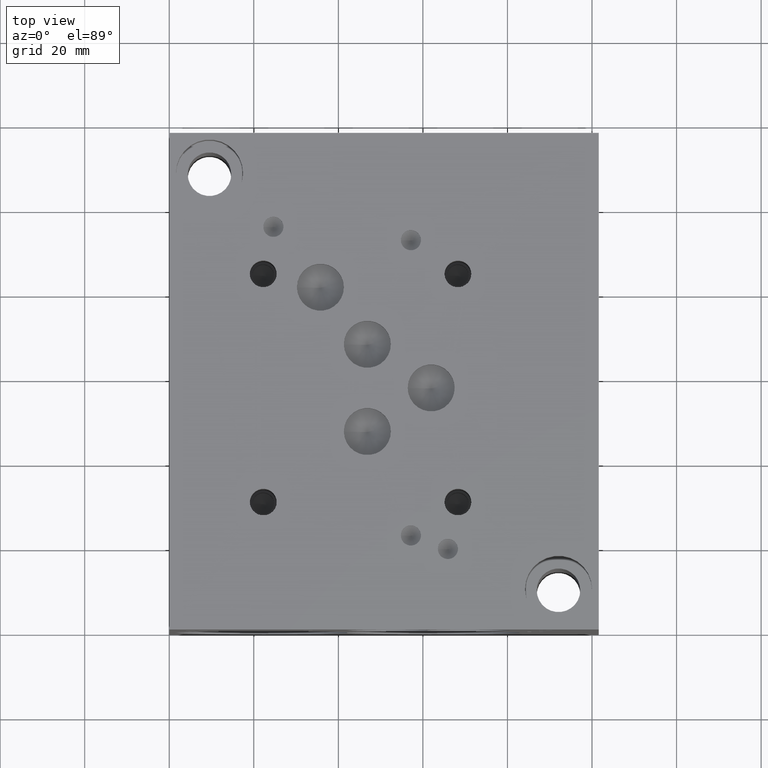
[diagram: clean part render]
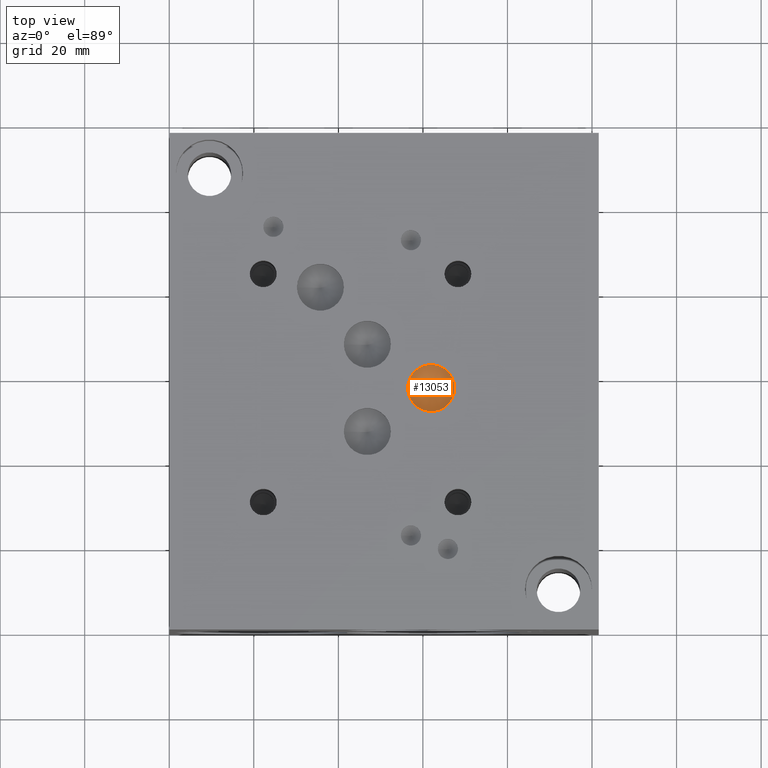
[diagram: same view with one face highlighted and labeled with its STEP entity id]
A machine part, top view. The second image highlights one B-rep face of the part: STEP entity #13053.
In plain terms, the highlighted conical surface has half-angle 60 deg.
Its self-contained STEP definition (entity closure, byte-faithful):
#132=CONICAL_SURFACE('',#13768,2.7813,1.0471975511966);
#325=CIRCLE('',#13769,5.5626);
#326=CIRCLE('',#13770,5.5626);
#1523=FACE_OUTER_BOUND('',#2257,.T.);
#2257=EDGE_LOOP('',(#11457,#11458,#11459,#11460));
#3539=LINE('',#22144,#4775);
#4775=VECTOR('',#16406,2.7813);
#6249=VERTEX_POINT('',#22140);
#6250=VERTEX_POINT('',#22141);
#6251=VERTEX_POINT('',#22143);
#8027=EDGE_CURVE('',#6249,#6250,#325,.T.);
#8028=EDGE_CURVE('',#6250,#6251,#3539,.T.);
#8029=EDGE_CURVE('',#6250,#6249,#326,.T.);
#11457=ORIENTED_EDGE('',*,*,#8027,.T.);
#11458=ORIENTED_EDGE('',*,*,#8028,.T.);
#11459=ORIENTED_EDGE('',*,*,#8028,.F.);
#11460=ORIENTED_EDGE('',*,*,#8029,.T.);
#13053=ADVANCED_FACE('',(#1523),#132,.F.);
#13768=AXIS2_PLACEMENT_3D('',#22139,#16402,#16403);
#13769=AXIS2_PLACEMENT_3D('',#22142,#16404,#16405);
#13770=AXIS2_PLACEMENT_3D('',#22145,#16407,#16408);
#16402=DIRECTION('center_axis',(0.,0.,1.));
#16403=DIRECTION('ref_axis',(1.,0.,0.));
#16404=DIRECTION('center_axis',(0.,0.,1.));
#16405=DIRECTION('ref_axis',(1.,0.,0.));
#16406=DIRECTION('',(0.866025403784439,1.06057523872491E-16,-0.5));
#16407=DIRECTION('center_axis',(0.,0.,1.));
#16408=DIRECTION('ref_axis',(1.,0.,0.));
#22139=CARTESIAN_POINT('Origin',(61.9506,57.1373,71.3826456963029));
#22140=CARTESIAN_POINT('',(67.5132,57.1373,72.98843));
#22141=CARTESIAN_POINT('',(56.388,57.1373,72.98843));
#22142=CARTESIAN_POINT('Origin',(61.9506,57.1373,72.98843));
#22143=CARTESIAN_POINT('',(61.9506,57.1373,69.7768613926058));
#22144=CARTESIAN_POINT('',(59.1693,57.1373,71.3826456963029));
#22145=CARTESIAN_POINT('Origin',(61.9506,57.1373,72.98843));